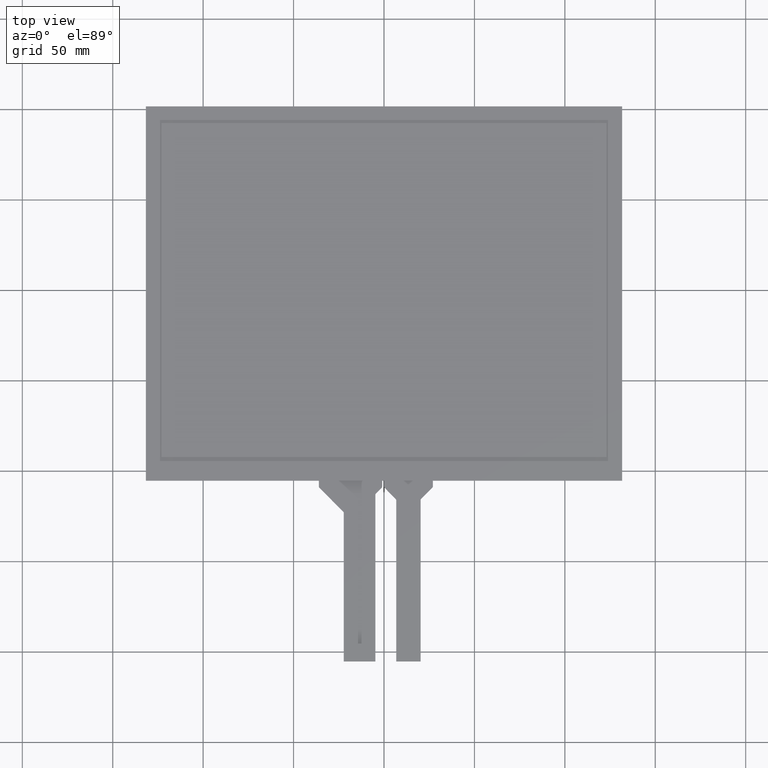
[diagram: clean part render]
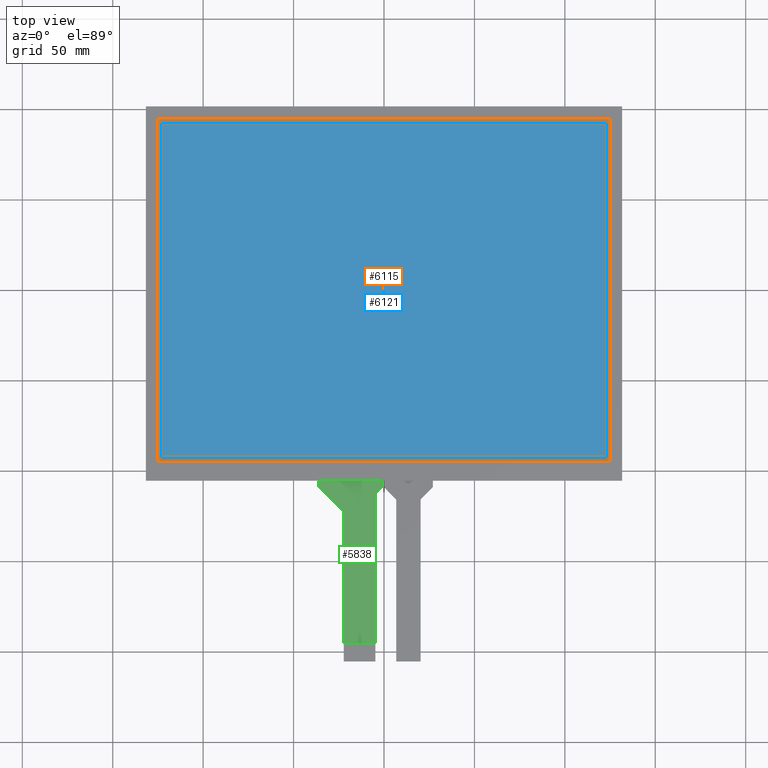
[diagram: same view with three faces highlighted in distinct colors, each labeled with its STEP entity id]
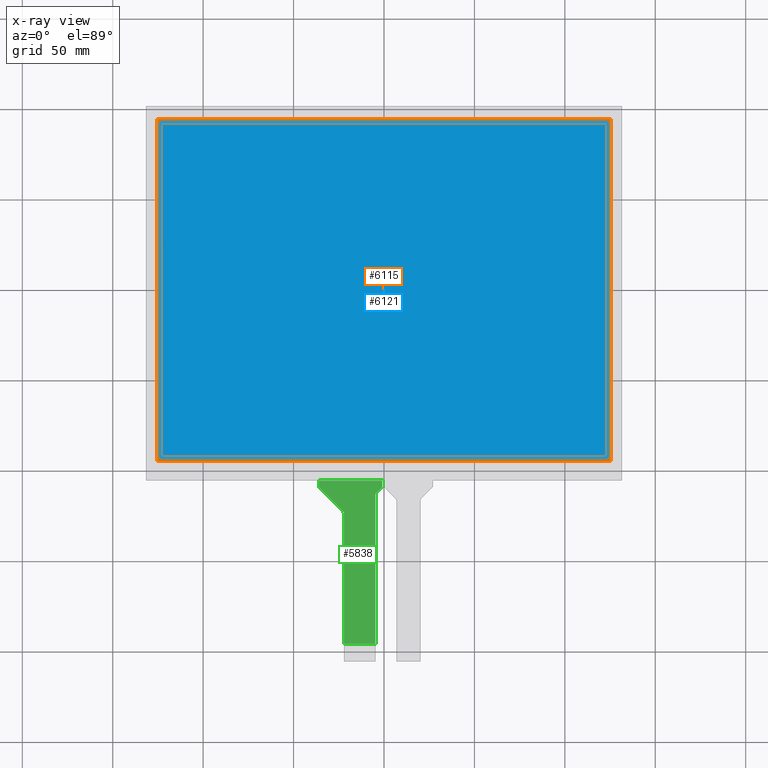
[diagram: x-ray of the same camera — body ghosted, the three highlighted faces saturated]
A machine part, top view with three faces highlighted in distinct colors.
The next image is the same camera in x-ray (body ghosted, the three faces saturated) — at least one of them is partly hidden behind the body in this view.
Their STEP definitions:

[orange] entity #6115 — the highlighted planar face has unit normal (0, 0, -1).
#67=FACE_BOUND('',#934,.T.);
#345=PLANE('',#6453);
#639=FACE_OUTER_BOUND('',#933,.T.);
#933=EDGE_LOOP('',(#5769,#5770,#5771,#5772));
#934=EDGE_LOOP('',(#5773,#5774,#5775,#5776));
#1751=LINE('',#9605,#2591);
#1755=LINE('',#9612,#2595);
#1758=LINE('',#9618,#2598);
#1760=LINE('',#9621,#2600);
#1763=LINE('',#9629,#2603);
#1767=LINE('',#9636,#2607);
#1770=LINE('',#9642,#2610);
#1772=LINE('',#9645,#2612);
#2591=VECTOR('',#7875,10.);
#2595=VECTOR('',#7881,10.);
#2598=VECTOR('',#7886,10.);
#2600=VECTOR('',#7890,10.);
#2603=VECTOR('',#7895,10.);
#2607=VECTOR('',#7901,10.);
#2610=VECTOR('',#7906,10.);
#2612=VECTOR('',#7910,10.);
#3203=VERTEX_POINT('',#9602);
#3204=VERTEX_POINT('',#9604);
#3206=VERTEX_POINT('',#9610);
#3208=VERTEX_POINT('',#9616);
#3211=VERTEX_POINT('',#9626);
#3212=VERTEX_POINT('',#9628);
#3214=VERTEX_POINT('',#9634);
#3216=VERTEX_POINT('',#9640);
#4055=EDGE_CURVE('',#3203,#3204,#1751,.T.);
#4059=EDGE_CURVE('',#3206,#3203,#1755,.T.);
#4062=EDGE_CURVE('',#3208,#3206,#1758,.T.);
#4064=EDGE_CURVE('',#3204,#3208,#1760,.T.);
#4067=EDGE_CURVE('',#3211,#3212,#1763,.T.);
#4071=EDGE_CURVE('',#3214,#3211,#1767,.T.);
#4074=EDGE_CURVE('',#3216,#3214,#1770,.T.);
#4076=EDGE_CURVE('',#3212,#3216,#1772,.T.);
#5769=ORIENTED_EDGE('',*,*,#4076,.F.);
#5770=ORIENTED_EDGE('',*,*,#4067,.F.);
#5771=ORIENTED_EDGE('',*,*,#4071,.F.);
#5772=ORIENTED_EDGE('',*,*,#4074,.F.);
#5773=ORIENTED_EDGE('',*,*,#4064,.F.);
#5774=ORIENTED_EDGE('',*,*,#4055,.F.);
#5775=ORIENTED_EDGE('',*,*,#4059,.F.);
#5776=ORIENTED_EDGE('',*,*,#4062,.F.);
#6115=ADVANCED_FACE('',(#639,#67),#345,.F.);
#6453=AXIS2_PLACEMENT_3D('',#9646,#7911,#7912);
#7875=DIRECTION('',(1.,0.,0.));
#7881=DIRECTION('',(0.,-1.,0.));
#7886=DIRECTION('',(-1.,0.,0.));
#7890=DIRECTION('',(0.,1.,0.));
#7895=DIRECTION('',(-1.87676369720048E-16,1.,0.));
#7901=DIRECTION('',(-1.,-1.41938221286476E-16,0.));
#7906=DIRECTION('',(9.38381848600238E-17,-1.,0.));
#7910=DIRECTION('',(1.,7.09691106432381E-17,0.));
#7911=DIRECTION('center_axis',(0.,0.,-1.));
#7912=DIRECTION('ref_axis',(-1.,0.,0.));
#9602=CARTESIAN_POINT('',(-123.,-92.25,-0.1));
#9604=CARTESIAN_POINT('',(123.,-92.25,-0.1));
#9605=CARTESIAN_POINT('',(123.,-92.25,-0.1));
#9610=CARTESIAN_POINT('',(-123.,92.25,-0.1));
#9612=CARTESIAN_POINT('',(-123.,-92.25,-0.1));
#9616=CARTESIAN_POINT('',(123.,92.25,-0.1));
#9618=CARTESIAN_POINT('',(-123.,92.25,-0.1));
#9621=CARTESIAN_POINT('',(123.,92.25,-0.1));
#9626=CARTESIAN_POINT('',(-125.15,-94.65,-0.1));
#9628=CARTESIAN_POINT('',(-125.15,94.65,-0.1));
#9629=CARTESIAN_POINT('',(-125.15,94.65,-0.1));
#9634=CARTESIAN_POINT('',(125.15,-94.65,-0.1));
#9636=CARTESIAN_POINT('',(-125.15,-94.65,-0.1));
#9640=CARTESIAN_POINT('',(125.15,94.65,-0.1));
#9642=CARTESIAN_POINT('',(125.15,-94.65,-0.1));
#9645=CARTESIAN_POINT('',(125.15,94.65,-0.1));
#9646=CARTESIAN_POINT('Origin',(-1.77635683940025E-14,1.77635683940025E-14,
-0.1));

[blue] entity #6121 — the highlighted planar face has unit normal (0, 0, 1).
#351=PLANE('',#6459);
#645=FACE_OUTER_BOUND('',#943,.T.);
#943=EDGE_LOOP('',(#5809,#5810,#5811,#5812));
#1749=LINE('',#9601,#2589);
#1753=LINE('',#9609,#2593);
#1756=LINE('',#9615,#2596);
#1759=LINE('',#9620,#2599);
#2589=VECTOR('',#7873,10.);
#2593=VECTOR('',#7879,10.);
#2596=VECTOR('',#7884,10.);
#2599=VECTOR('',#7889,10.);
#3201=VERTEX_POINT('',#9599);
#3202=VERTEX_POINT('',#9600);
#3205=VERTEX_POINT('',#9608);
#3207=VERTEX_POINT('',#9614);
#4053=EDGE_CURVE('',#3201,#3202,#1749,.T.);
#4057=EDGE_CURVE('',#3205,#3201,#1753,.T.);
#4060=EDGE_CURVE('',#3207,#3205,#1756,.T.);
#4063=EDGE_CURVE('',#3202,#3207,#1759,.T.);
#5809=ORIENTED_EDGE('',*,*,#4053,.T.);
#5810=ORIENTED_EDGE('',*,*,#4063,.T.);
#5811=ORIENTED_EDGE('',*,*,#4060,.T.);
#5812=ORIENTED_EDGE('',*,*,#4057,.T.);
#6121=ADVANCED_FACE('',(#645),#351,.T.);
#6459=AXIS2_PLACEMENT_3D('',#9672,#7935,#7936);
#7873=DIRECTION('',(1.,0.,0.));
#7879=DIRECTION('',(0.,-1.,0.));
#7884=DIRECTION('',(-1.,0.,0.));
#7889=DIRECTION('',(0.,1.,0.));
#7935=DIRECTION('center_axis',(0.,0.,1.));
#7936=DIRECTION('ref_axis',(1.,0.,0.));
#9599=CARTESIAN_POINT('',(-123.,-92.25,0.));
#9600=CARTESIAN_POINT('',(123.,-92.25,0.));
#9601=CARTESIAN_POINT('',(-61.5,-92.25,0.));
#9608=CARTESIAN_POINT('',(-123.,92.25,0.));
#9609=CARTESIAN_POINT('',(-123.,45.2,0.));
#9614=CARTESIAN_POINT('',(123.,92.25,0.));
#9615=CARTESIAN_POINT('',(61.5,92.25,0.));
#9620=CARTESIAN_POINT('',(123.,-47.05,0.));
#9672=CARTESIAN_POINT('Origin',(-1.77635683940025E-14,-1.85,0.));

[green] entity #5838 — the highlighted planar face has unit normal (0, 0, 1).
#76=PLANE('',#6162);
#362=FACE_OUTER_BOUND('',#656,.T.);
#656=EDGE_LOOP('',(#4141,#4142,#4143,#4144,#4145,#4146,#4147,#4148,#4149,
#4150,#4151,#4152));
#966=LINE('',#8002,#1806);
#976=LINE('',#8025,#1816);
#977=LINE('',#8028,#1817);
#978=LINE('',#8030,#1818);
#979=LINE('',#8032,#1819);
#980=LINE('',#8036,#1820);
#981=LINE('',#8040,#1821);
#982=LINE('',#8041,#1822);
#1806=VECTOR('',#6514,10.);
#1816=VECTOR('',#6532,10.);
#1817=VECTOR('',#6535,10.);
#1818=VECTOR('',#6536,10.);
#1819=VECTOR('',#6537,10.);
#1820=VECTOR('',#6540,10.);
#1821=VECTOR('',#6543,10.);
#1822=VECTOR('',#6544,10.);
#2631=CIRCLE('',#6155,1.);
#2634=CIRCLE('',#6160,1.);
#2635=CIRCLE('',#6163,1.);
#2636=CIRCLE('',#6164,1.);
#2670=VERTEX_POINT('',#7992);
#2671=VERTEX_POINT('',#7993);
#2674=VERTEX_POINT('',#8001);
#2682=VERTEX_POINT('',#8018);
#2683=VERTEX_POINT('',#8020);
#2684=VERTEX_POINT('',#8027);
#2685=VERTEX_POINT('',#8029);
#2686=VERTEX_POINT('',#8031);
#2687=VERTEX_POINT('',#8033);
#2688=VERTEX_POINT('',#8035);
#2689=VERTEX_POINT('',#8037);
#2690=VERTEX_POINT('',#8039);
#3250=EDGE_CURVE('',#2670,#2671,#2631,.T.);
#3254=EDGE_CURVE('',#2674,#2671,#966,.T.);
#3263=EDGE_CURVE('',#2682,#2683,#2634,.T.);
#3266=EDGE_CURVE('',#2670,#2683,#976,.T.);
#3267=EDGE_CURVE('',#2682,#2684,#977,.T.);
#3268=EDGE_CURVE('',#2685,#2684,#978,.T.);
#3269=EDGE_CURVE('',#2685,#2686,#979,.T.);
#3270=EDGE_CURVE('',#2687,#2686,#2635,.T.);
#3271=EDGE_CURVE('',#2687,#2688,#980,.T.);
#3272=EDGE_CURVE('',#2689,#2688,#2636,.T.);
#3273=EDGE_CURVE('',#2689,#2690,#981,.T.);
#3274=EDGE_CURVE('',#2690,#2674,#982,.T.);
#4141=ORIENTED_EDGE('',*,*,#3263,.F.);
#4142=ORIENTED_EDGE('',*,*,#3267,.T.);
#4143=ORIENTED_EDGE('',*,*,#3268,.F.);
#4144=ORIENTED_EDGE('',*,*,#3269,.T.);
#4145=ORIENTED_EDGE('',*,*,#3270,.F.);
#4146=ORIENTED_EDGE('',*,*,#3271,.T.);
#4147=ORIENTED_EDGE('',*,*,#3272,.F.);
#4148=ORIENTED_EDGE('',*,*,#3273,.T.);
#4149=ORIENTED_EDGE('',*,*,#3274,.T.);
#4150=ORIENTED_EDGE('',*,*,#3254,.T.);
#4151=ORIENTED_EDGE('',*,*,#3250,.F.);
#4152=ORIENTED_EDGE('',*,*,#3266,.T.);
#5838=ADVANCED_FACE('',(#362),#76,.T.);
#6155=AXIS2_PLACEMENT_3D('',#7994,#6506,#6507);
#6160=AXIS2_PLACEMENT_3D('',#8021,#6526,#6527);
#6162=AXIS2_PLACEMENT_3D('',#8026,#6533,#6534);
#6163=AXIS2_PLACEMENT_3D('',#8034,#6538,#6539);
#6164=AXIS2_PLACEMENT_3D('',#8038,#6541,#6542);
#6506=DIRECTION('center_axis',(0.,0.,1.));
#6507=DIRECTION('ref_axis',(-0.923531889914345,0.383521639951696,0.));
#6514=DIRECTION('',(-4.79248887762603E-16,1.,0.));
#6526=DIRECTION('center_axis',(0.,0.,-1.));
#6527=DIRECTION('ref_axis',(0.923531889914352,-0.38352163995168,0.));
#6532=DIRECTION('',(0.708388929935268,0.705822303377533,0.));
#6533=DIRECTION('center_axis',(0.,0.,1.));
#6534=DIRECTION('ref_axis',(1.,0.,0.));
#6535=DIRECTION('',(0.,1.,0.));
#6536=DIRECTION('',(1.,6.74651287276966E-17,0.));
#6537=DIRECTION('',(-2.4671622769448E-15,-1.,0.));
#6538=DIRECTION('center_axis',(0.,0.,-1.));
#6539=DIRECTION('ref_axis',(-0.924226414342084,-0.381844909658848,0.));
#6540=DIRECTION('',(0.705822303377533,-0.708388929935268,0.));
#6541=DIRECTION('center_axis',(0.,0.,1.));
#6542=DIRECTION('ref_axis',(0.924226414342084,0.38184490965885,0.));
#6543=DIRECTION('',(1.61291480575083E-16,-1.,0.));
#6544=DIRECTION('',(1.,0.,0.));
#7992=CARTESIAN_POINT('',(-4.45582230337756,-112.393301208075,-0.2));
#7993=CARTESIAN_POINT('',(-4.75000000000002,-113.101690138011,-0.2));
#7994=CARTESIAN_POINT('Origin',(-3.75000000000002,-113.101690138011,-0.2));
#8001=CARTESIAN_POINT('',(-4.74999999999997,-195.35,-0.2));
#8002=CARTESIAN_POINT('',(-4.74999999999997,-205.35,-0.2));
#8018=CARTESIAN_POINT('',(-1.00000000000003,-108.534722905468,-0.2));
#8020=CARTESIAN_POINT('',(-1.29417769662249,-109.243111835403,-0.2));
#8021=CARTESIAN_POINT('Origin',(-2.00000000000002,-108.534722905468,-0.2));
#8025=CARTESIAN_POINT('',(-4.75000000000002,-112.686413043478,-0.2));
#8026=CARTESIAN_POINT('Origin',(-18.5,-155.35,-0.2));
#8027=CARTESIAN_POINT('',(-1.00000000000003,-105.35,-0.2));
#8028=CARTESIAN_POINT('',(-1.00000000000003,-108.95,-0.2));
#8029=CARTESIAN_POINT('',(-36.,-105.35,-0.2));
#8030=CARTESIAN_POINT('',(56.575,-105.35,-0.2));
#8031=CARTESIAN_POINT('',(-36.,-108.536849170578,-0.2));
#8032=CARTESIAN_POINT('',(-36.,-105.35,-0.2));
#8033=CARTESIAN_POINT('',(-35.7083889299353,-109.242671473956,-0.2));
#8034=CARTESIAN_POINT('Origin',(-35.,-108.536849170578,-0.2));
#8035=CARTESIAN_POINT('',(-22.5416110700647,-122.457328526044,-0.2));
#8036=CARTESIAN_POINT('',(-36.,-108.95,-0.2));
#8037=CARTESIAN_POINT('',(-22.25,-123.163150829422,-0.2));
#8038=CARTESIAN_POINT('Origin',(-23.25,-123.163150829422,-0.2));
#8039=CARTESIAN_POINT('',(-22.25,-195.35,-0.2));
#8040=CARTESIAN_POINT('',(-22.25,-122.75,-0.2));
#8041=CARTESIAN_POINT('',(-11.625,-195.35,-0.2));